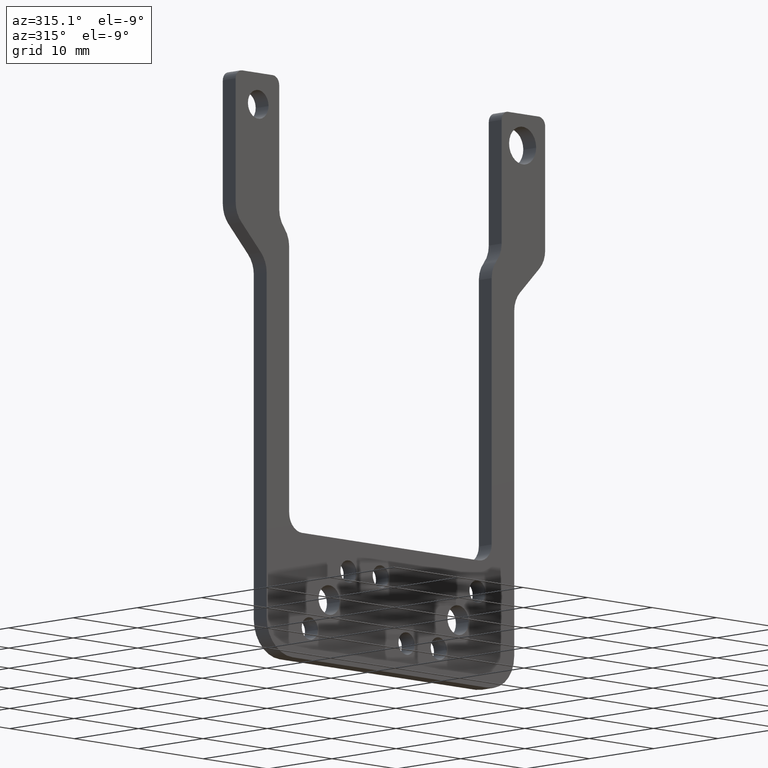
[diagram: clean part render]
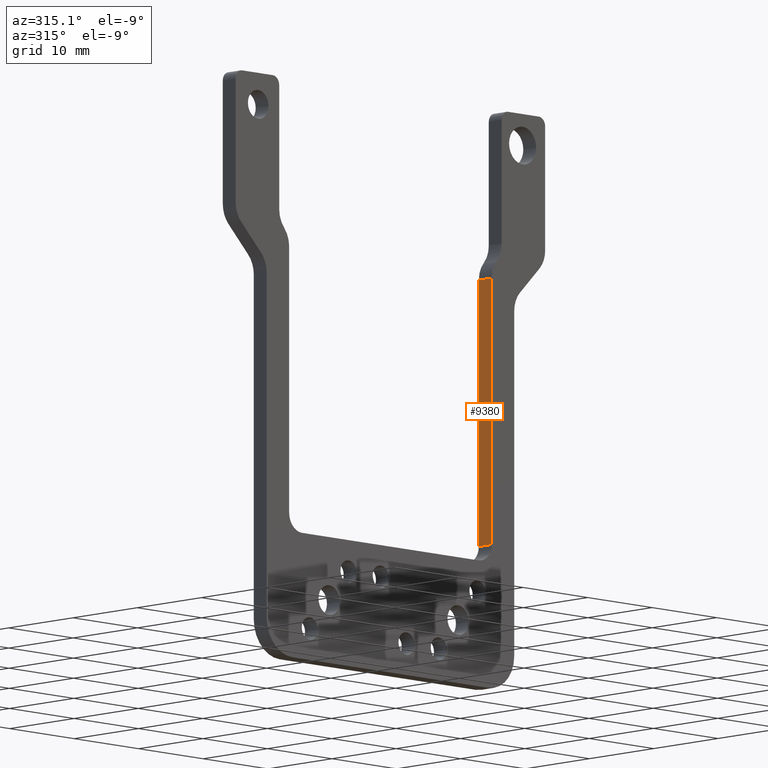
[diagram: same view with one face highlighted and labeled with its STEP entity id]
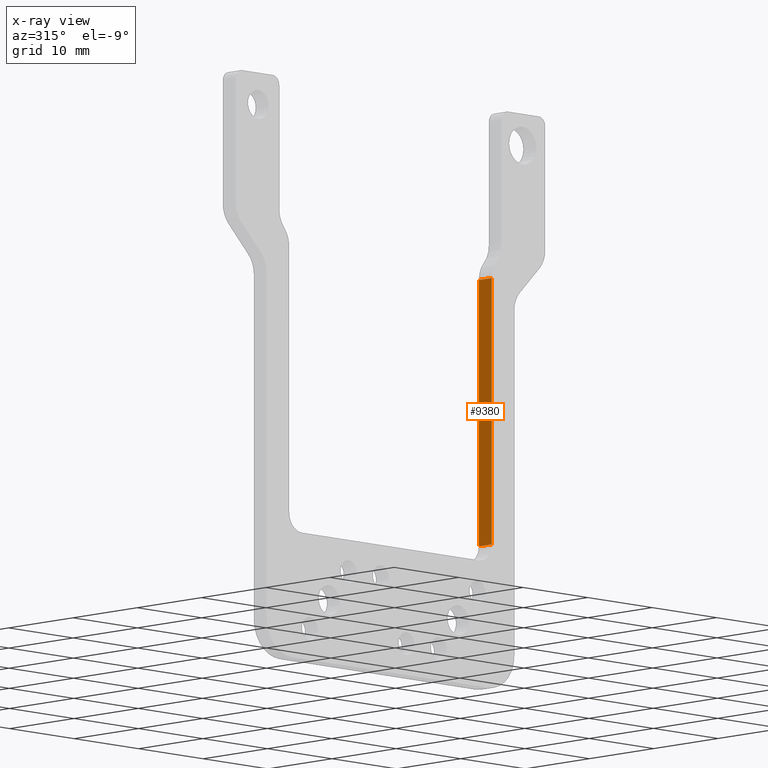
[diagram: x-ray of the same camera — body ghosted, the highlighted face saturated]
A machine part, auxiliary view. The second image highlights one B-rep face of the part: STEP entity #9380.
The next image is the same camera in x-ray: the body ghosted, the highlighted face saturated — about 0% of this face is hidden behind the body in this view.
In plain terms, the highlighted planar face has unit normal (1, 0, -0).
Its self-contained STEP definition (entity closure, byte-faithful):
#3420=CARTESIAN_POINT('',(-15.7,-1.5866760958869E-13,-44.8999999999996))
;
#3430=VERTEX_POINT('',#3420);
#3460=CARTESIAN_POINT('',(-15.7,-3.43683076926286E-14,-9.53108891324553)
);
#3470=DIRECTION('',(1.1119514927998E-17,-3.51436609374757E-15,-1.));
#3480=VECTOR('',#3470,1.);
#3490=LINE('',#3460,#3480);
#3500=CARTESIAN_POINT('',(-15.7,-5.45790130427323E-14,-15.2819710954009)
);
#3510=VERTEX_POINT('',#3500);
#3520=EDGE_CURVE('',#3510,#3430,#3490,.T.);
#6370=CARTESIAN_POINT('',(-15.7,-2.00000000000005,-15.2819710954008));
#6380=VERTEX_POINT('',#6370);
#6410=CARTESIAN_POINT('',(-15.7,-2.00000000000003,-9.53108891324552));
#6420=DIRECTION('',(1.1119514927998E-17,-3.51436609374757E-15,-1.));
#6430=VECTOR('',#6420,1.);
#6440=LINE('',#6410,#6430);
#6450=CARTESIAN_POINT('',(-15.7,-2.00000000000016,-44.8999999999996));
#6460=VERTEX_POINT('',#6450);
#6470=EDGE_CURVE('',#6380,#6460,#6440,.T.);
#9170=CARTESIAN_POINT('',(-15.7,-1.04546371744978E-13,-29.5));
#9180=DIRECTION('',(-1.,-3.90780462418762E-32,-1.1119514927998E-17));
#9190=DIRECTION('',(1.1119514927998E-17,-3.51436609374757E-15,-1.));
#9200=AXIS2_PLACEMENT_3D('',#9170,#9180,#9190);
#9210=PLANE('',#9200);
#9220=ORIENTED_EDGE('',*,*,#6470,.T.);
#9230=CARTESIAN_POINT('',(-15.7,-1.00000000000005,-15.2819710954009));
#9240=DIRECTION('',(0.,1.,-3.51436609374757E-15));
#9250=VECTOR('',#9240,1.);
#9260=LINE('',#9230,#9250);
#9270=EDGE_CURVE('',#6380,#3510,#9260,.T.);
#9280=ORIENTED_EDGE('',*,*,#9270,.F.);
#9290=ORIENTED_EDGE('',*,*,#3520,.F.);
#9300=CARTESIAN_POINT('',(-15.7,-1.5866760958869E-13,-44.8999999999996))
;
#9310=DIRECTION('',(0.,-1.,3.51436609374757E-15));
#9320=VECTOR('',#9310,1.);
#9330=LINE('',#9300,#9320);
#9340=EDGE_CURVE('',#3430,#6460,#9330,.T.);
#9350=ORIENTED_EDGE('',*,*,#9340,.F.);
#9360=EDGE_LOOP('',(#9350,#9290,#9280,#9220));
#9370=FACE_OUTER_BOUND('',#9360,.T.);
#9380=ADVANCED_FACE('',(#9370),#9210,.F.);